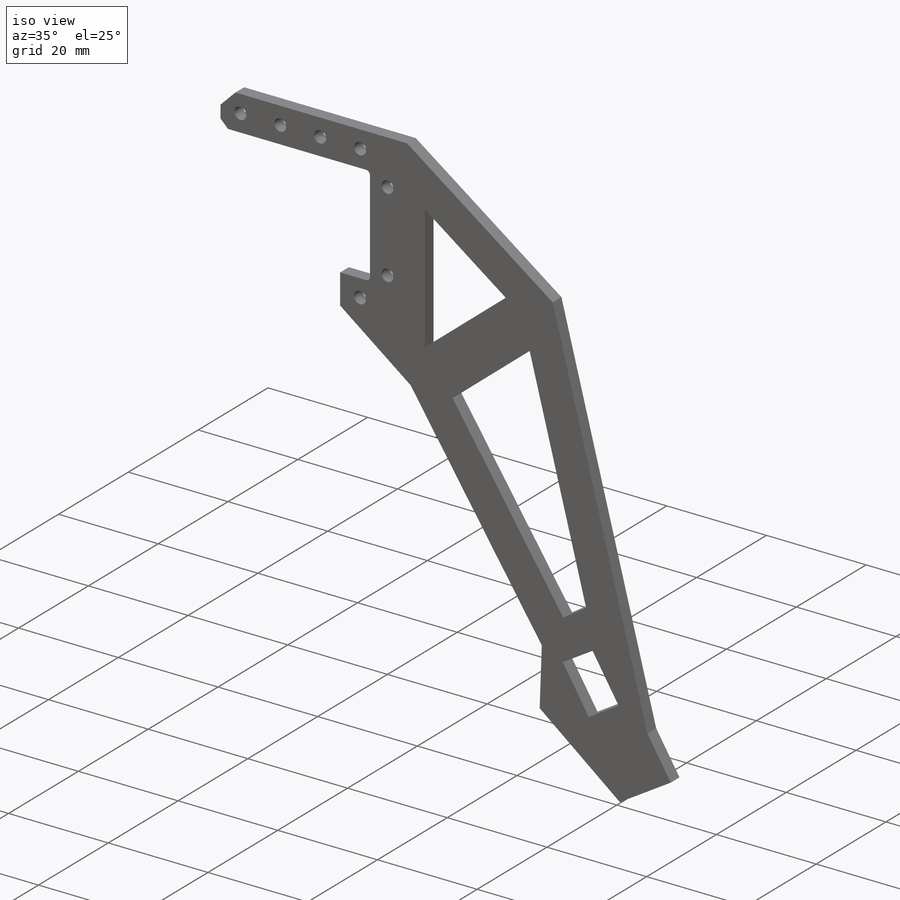
[diagram: iso view]
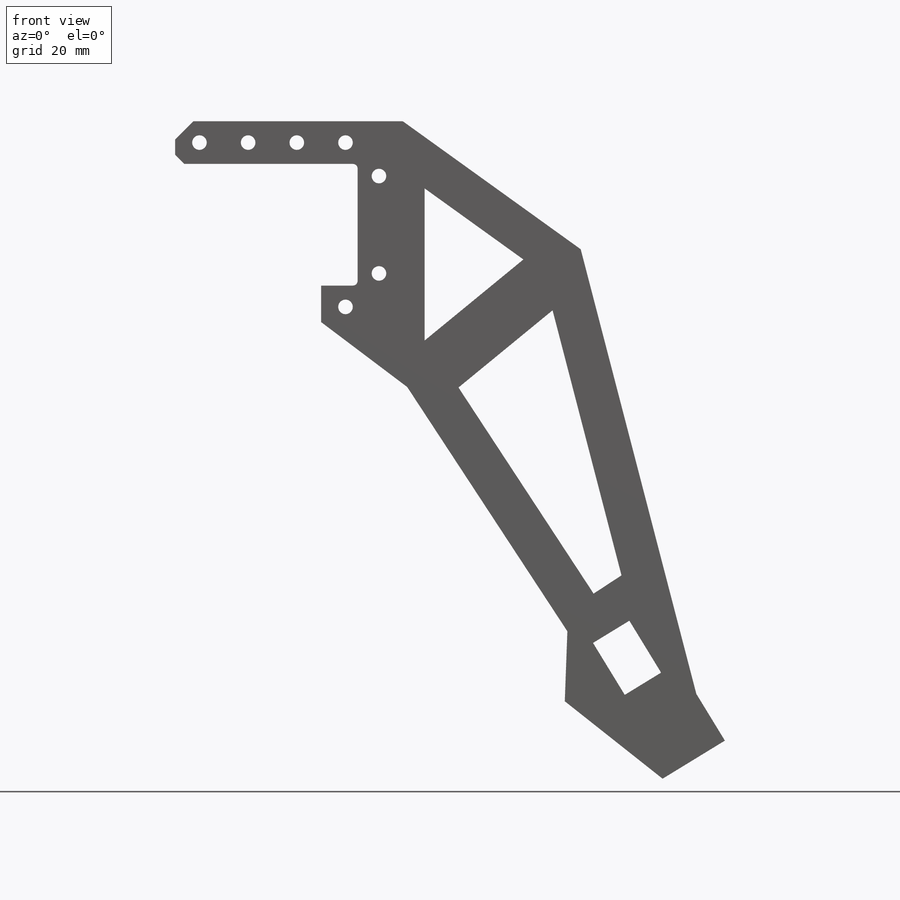
[diagram: front view]
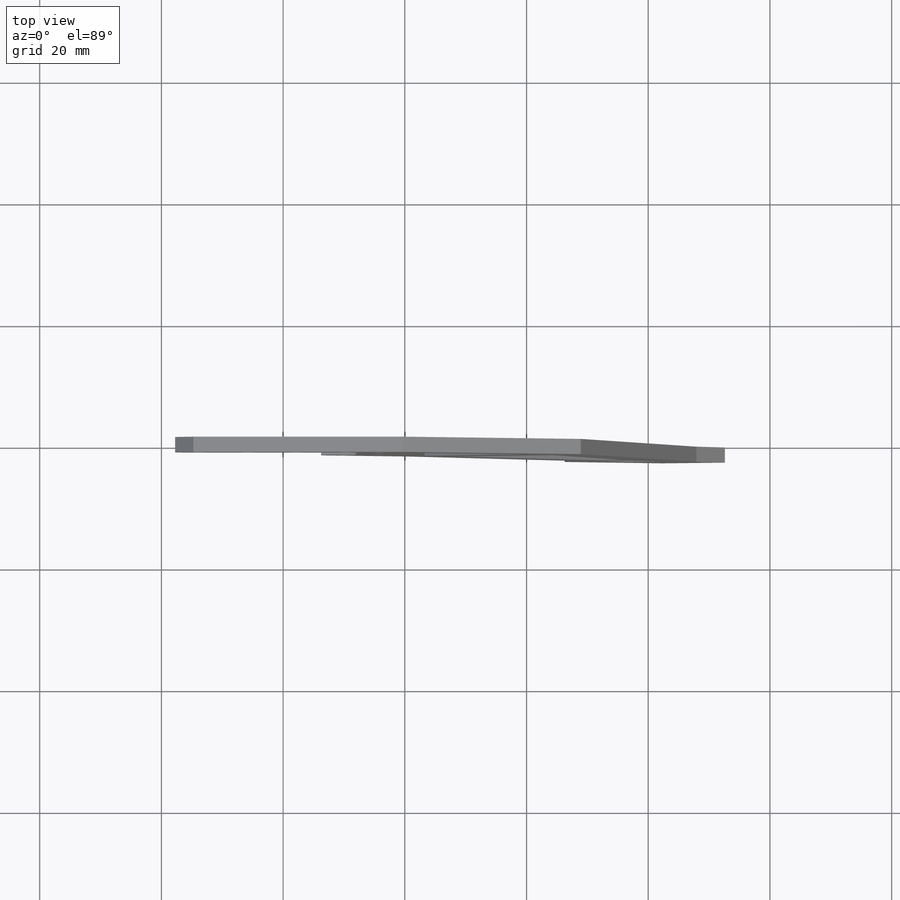
[diagram: top view]
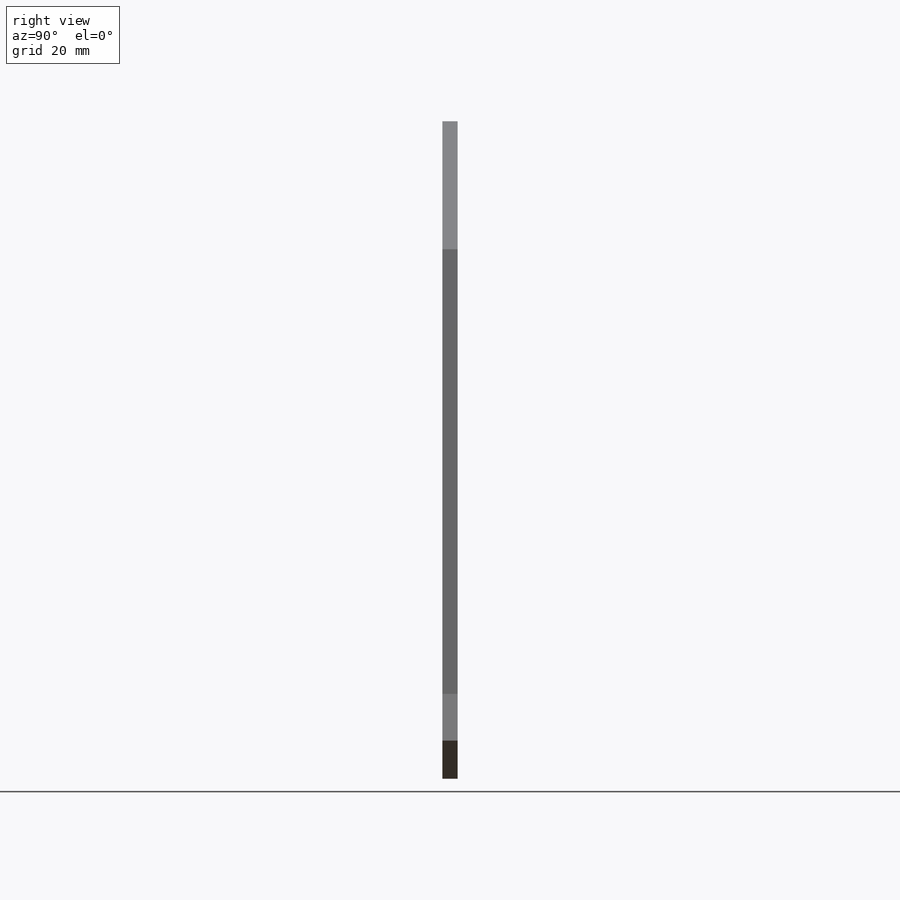
[diagram: right view]
SOLIDWORKS PART (.sldprt)
format: sldprt  version: not decoded by parser v0  size: 322,560 bytes
history: native  units: mm
features: sketch x4, plane x3, chamfer x2, material x1, extrude x1, hole x1, fillet x1, cut_extrude x1 (+10 scaffold rows collapsed)
feature tree (24):
  scaffold x10  (default folders/planes/origin — collapsed)
  material  "Material <not specified>"
  plane  "Plan de face"
  plane  "Plan de dessus"
  plane  "Plan de droite"
  sketch  "Esquisse1"  dims[c1.D1=8.0mm c1.D2=75.5mm c1.D3=36.0mm c1.D4=9.0mm c1.D5=12.0mm c1.D6=20.5mm c1.D7=11.5mm c1.D8=48.0mm c1.D9=7.0mm c1.D10=7.0mm c1.D11=9.5mm c1.D12=~5.484581mm c2.D12=~1.720569deg c3.D12=20.0mm c3.D13=24.5mm c3.D14=8.0mm c3.D15=27.0mm c3.D16=3.5mm c3.D17=2.0mm c3.D18=3.5mm c3.D19=2.0mm c3.D20=4.0mm c3.D21=8.0mm c3.D22=8.0mm c3.D23=8.0mm c3.D24=8.0mm c3.D25=8.0mm c4.D24=8.0mm c4.D25=8.0mm c4.D26=16.0mm c4.D20=5.5mm c4.D27=6.0mm c4.D28=7.0mm c4.D29=4.0mm c4.D30=11.0mm c4.D31=~19.575779mm c5.D31=~179.737966deg c6.D31=20.0mm c6.D32=40.5mm c6.D33=45.0mm c6.D34=20.0mm c6.D35=21.0mm c6.D36=25.0mm]
  extrude  "Boss.-Extru.1"  Depth=2.5mm
  hole  "Dégagement M21"  Diameter=2.4mm Depth=2.5mm
  sketch  "Esquisse3"
  sketch  "Esquisse2"  dims[hole-wizard template sketch: 59 standard entries collapsed; hole parameters kept: c18.Diamètre du perçage jusqu'au prochain=2.4mm c18.Profondeur du perçage jusqu'au prochain=2.5mm]
  chamfer  "Chanfrein1"  Distance=1.5mm Angle=45deg
  chamfer  "Chanfrein2"  Distance=3mm
  fillet  "Congé3"  Radius=0.8mm
  sketch  "Esquisse6"  dims[D1=10.0mm D2=15.0mm D3=~3.451941mm D4=7.0mm]
  cut_extrude  "Enlèv. mat.-Extru.1"  [1 undecoded]
decode coverage: 8 of 10 modeling features carry decoded parameters
note: ~ marks probable driven/reference dimensions
note: 1 parameter value undecoded
note: suppression state not decoded; provenance and decode notes live in map.json
